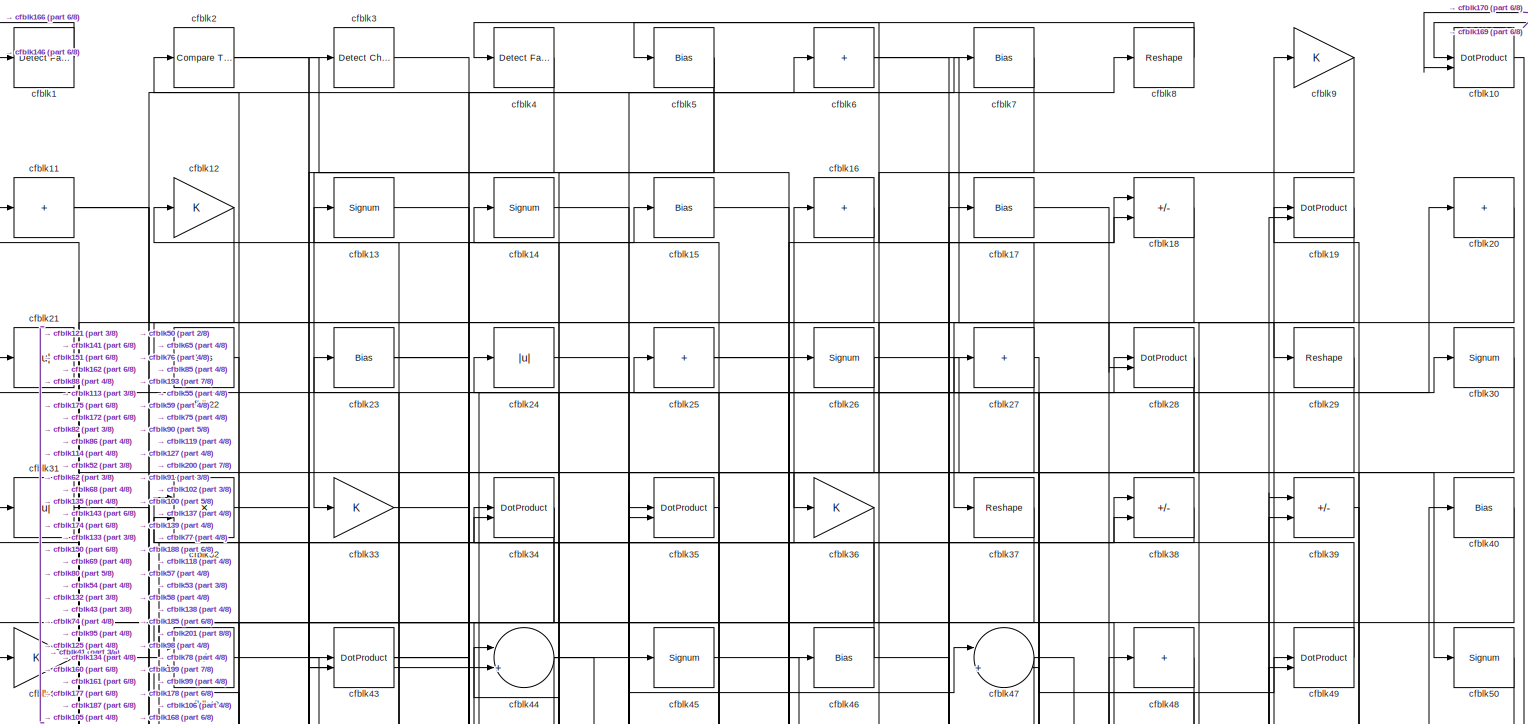
[diagram: root canvas - part 1/8, full width, top band]
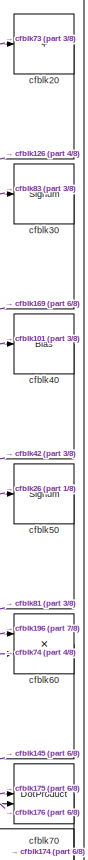
[diagram: root canvas - part 2/8, top right region]
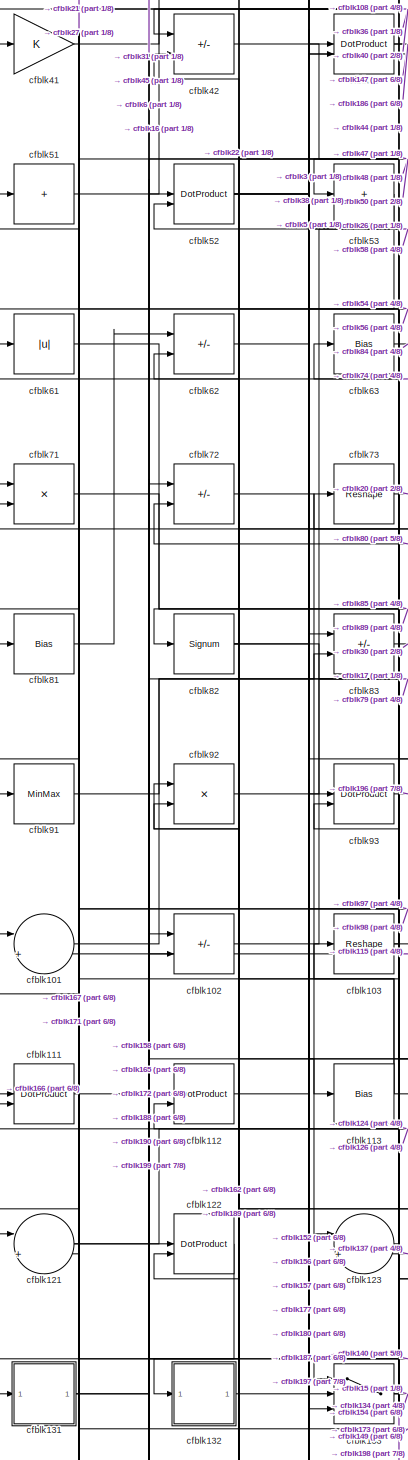
[diagram: root canvas - part 3/8, middle left region]
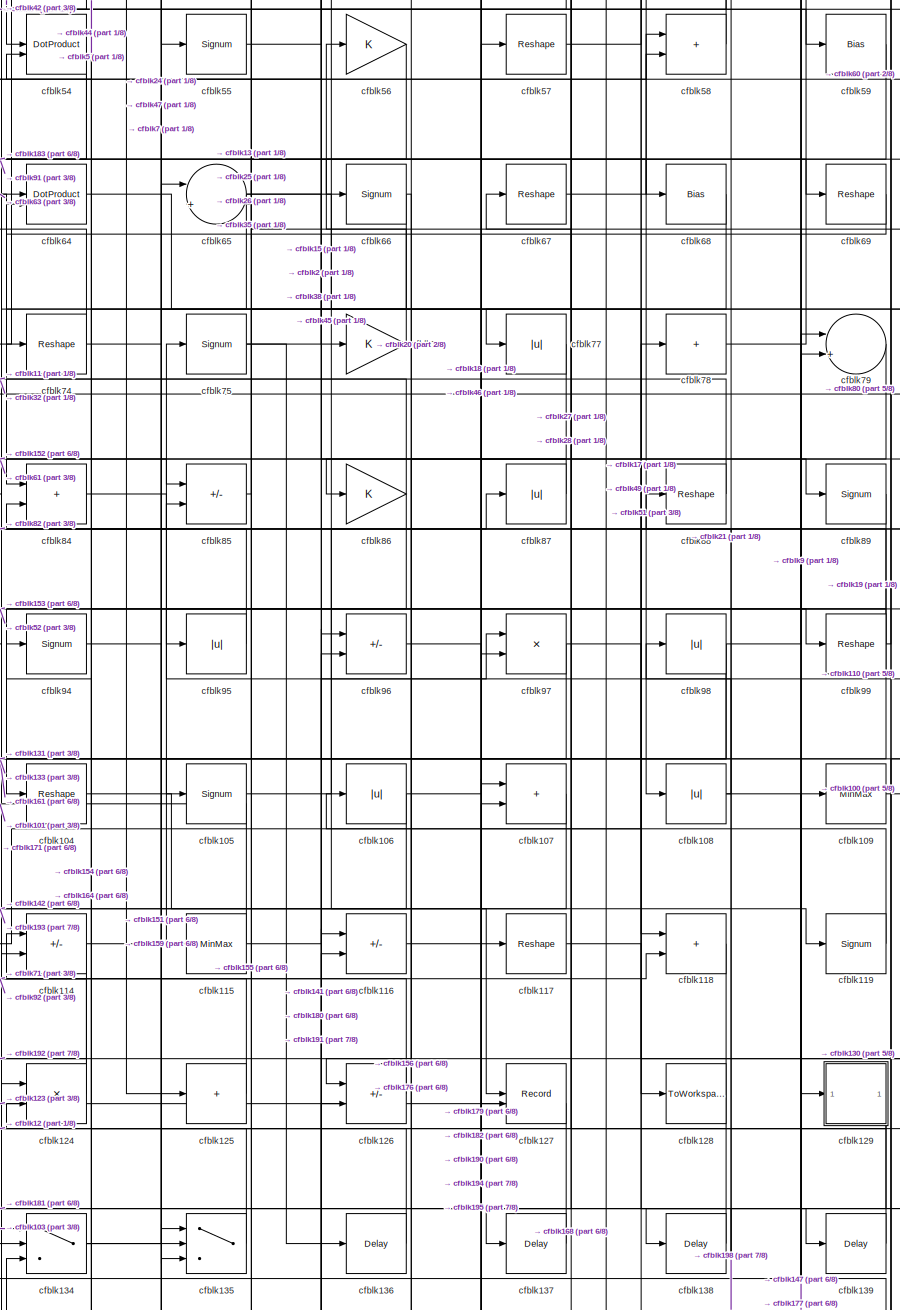
[diagram: root canvas - part 4/8, central region]
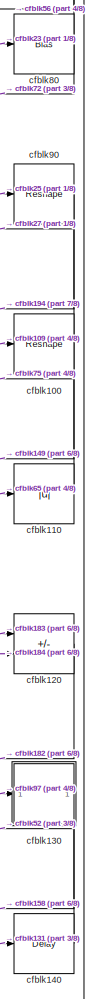
[diagram: root canvas - part 5/8, middle right region]
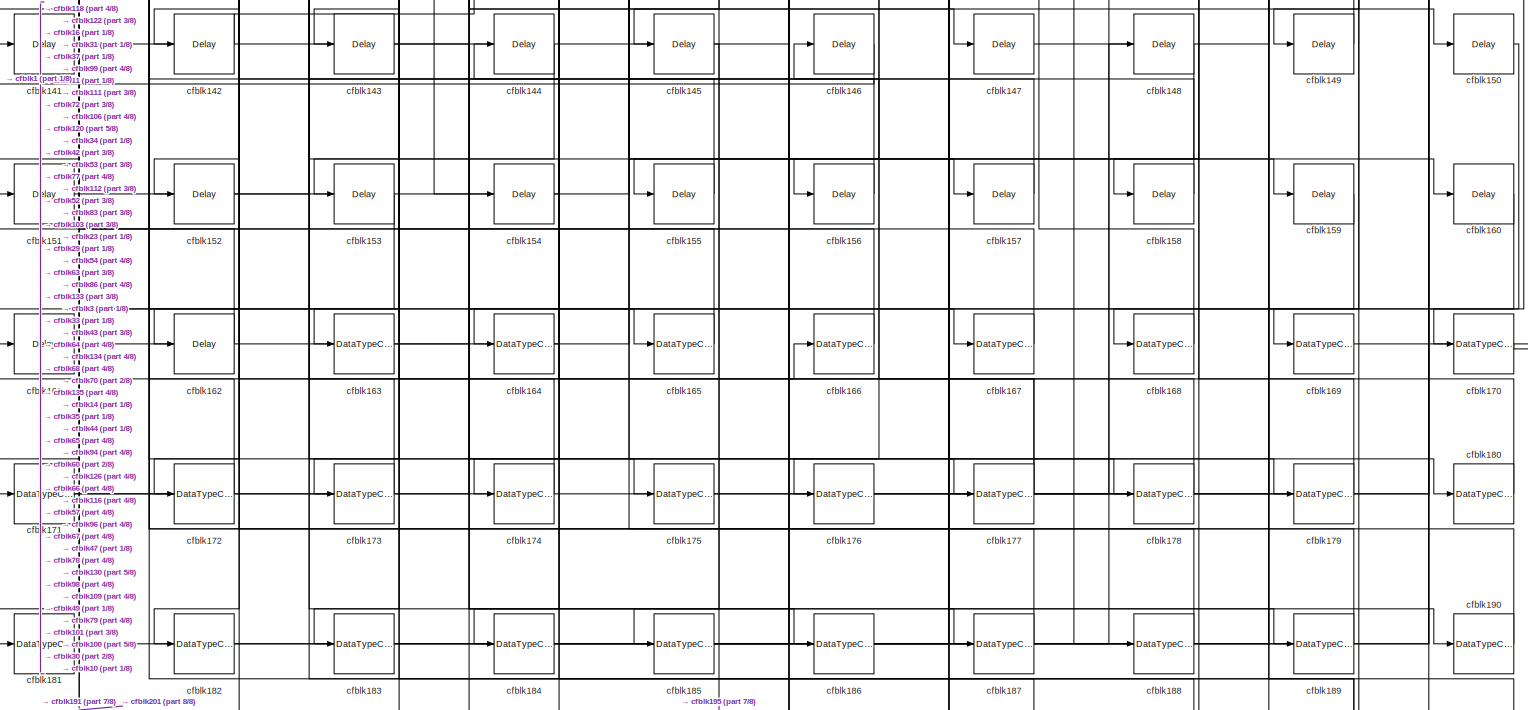
[diagram: root canvas - part 6/8, full width, bottom band]
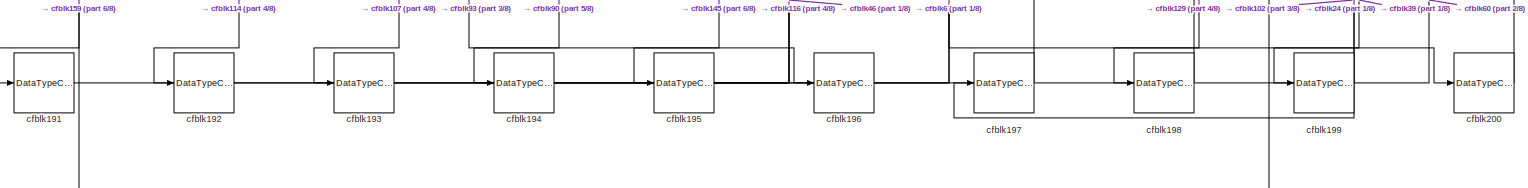
[diagram: root canvas - part 7/8, full width, bottom band]
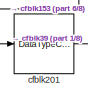
[diagram: root canvas - part 8/8, bottom left region]
MODEL slx_036431345b5e
KIND model
CONFIG AbsTol = auto
CONFIG EnableMultiTasking = off
CONFIG FixedStep = auto
CONFIG MaxStep = auto
CONFIG MinStep = auto
CONFIG RelTol = 1e-3
CONFIG SampleTimeConstraint = Unconstrained
CONFIG SolverName = VariableStepAuto
CONFIG StartTime = 0.0
CONFIG StopTime = 10.0
BLOCK [Reference] cfblk1  REF=hdlsllib/Logic and Bit
Operations/Detect Fall
Nonpositive
  SourceBlock = hdlsllib/Logic and Bit\nOperations/Detect Fall\nNonpositive
  SourceType = Detect Fall Nonpositive
BLOCK [DotProduct] cfblk10
  OutDataTypeStr = Inherit: Inherit via internal rule
BLOCK [Reshape] cfblk100
BLOCK [Sum] cfblk101
  Inputs = |++
BLOCK [Sum] cfblk102
  IconShape = rectangular
  Inputs = +-
BLOCK [Reshape] cfblk103
BLOCK [Reshape] cfblk104
BLOCK [Signum] cfblk105
BLOCK [Abs] cfblk106
  SaturateOnIntegerOverflow = off
BLOCK [Sum] cfblk107
  IconShape = rectangular
BLOCK [Abs] cfblk108
  SaturateOnIntegerOverflow = off
BLOCK [MinMax] cfblk109
BLOCK [Sum] cfblk11
  IconShape = rectangular
  Inputs = +
BLOCK [Abs] cfblk110
  SaturateOnIntegerOverflow = off
BLOCK [DotProduct] cfblk111
  OutDataTypeStr = Inherit: Inherit via internal rule
BLOCK [DotProduct] cfblk112
  OutDataTypeStr = Inherit: Inherit via internal rule
BLOCK [Bias] cfblk113
  Bias = 0.0
  SaturateOnIntegerOverflow = off
BLOCK [Sum] cfblk114
  IconShape = rectangular
  Inputs = +-
BLOCK [MinMax] cfblk115
BLOCK [Sum] cfblk116
  IconShape = rectangular
  Inputs = +-
BLOCK [Reshape] cfblk117
BLOCK [Sum] cfblk118
  IconShape = rectangular
BLOCK [Signum] cfblk119
BLOCK [Gain] cfblk12
BLOCK [Sum] cfblk120
  IconShape = rectangular
  Inputs = +-
BLOCK [Sum] cfblk121
  Inputs = |++
BLOCK [DotProduct] cfblk122
  OutDataTypeStr = Inherit: Inherit via internal rule
BLOCK [Sum] cfblk123
  Inputs = |++
BLOCK [Product] cfblk124
  Inputs = */
  RndMeth = Zero
  SaturateOnIntegerOverflow = on
BLOCK [Sum] cfblk125
  IconShape = rectangular
  Inputs = +
BLOCK [Sum] cfblk126
  IconShape = rectangular
  Inputs = +-
BLOCK [Record] cfblk127
  CompatibilityTag = XY
  FileSettingsInternal = {"entries":[{"content":{"excelSettings":{"content":{},"type":"Streamout.ExcelSettings"}},"type":"Streamout.FileSettingStorage","uuid":""}],"packageUris":["http:\/\/schema.mathworks.com\/mf0\/streamout_blocks\/R2020a"],"version":"1.0"}
  Layout = [1 1]
  SignalsInternal = {"entries":[{"content":{"signals":[{"content":{"blockPath":[],"dimensions":[1],"domain":"","lineColor":"#a2142f","plots":[1],"port":1,"sid":[""],"signalID":804,"signalName":"cfblk104"},"type":"RecordBlkView.Signal","uuid":""},{"content":{"blockPath":[],"dimensions":[1],"domain":"","lineColor":"#139fff","plots":[1],"port":2,"sid":[""],"signalID":810,"signalName":"cfblk9"},"type":"RecordBlkView.Sign...<+160ch>
  VisualizationBindings = {"xyplotplugin":{"info":[{"series":[{"bindingParametersList":[{"parameter":"X-Axis","signalID":804,"signalName":"cfblk104"},{"parameter":"Y-Axis","signalID":810,"signalName":"cfblk9"}],"seriesID":53597}],"subplotID":1}]}}
  st = -1
BLOCK [ToWorkspace] cfblk128
  MaxDataPoints = inf
  SampleTime = -1
  SaveFormat = Timeseries
  VariableName = simout
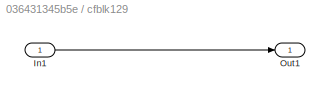
BLOCK [SubSystem] cfblk129
  LibrarySourceBlock = hdlsllib/Ports &\nSubsystems/Subsystem
BLOCK [Inport] cfblk129/In1
BLOCK [Outport] cfblk129/Out1
BLOCK [Signum] cfblk13
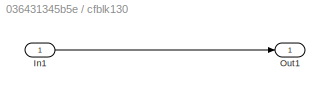
BLOCK [SubSystem] cfblk130
  LibrarySourceBlock = hdlsllib/Ports &\nSubsystems/Subsystem
BLOCK [Inport] cfblk130/In1
BLOCK [Outport] cfblk130/Out1
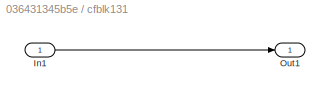
BLOCK [SubSystem] cfblk131
  LibrarySourceBlock = hdlsllib/Ports &\nSubsystems/Subsystem
BLOCK [Inport] cfblk131/In1
BLOCK [Outport] cfblk131/Out1
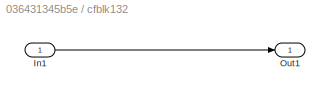
BLOCK [SubSystem] cfblk132
  LibrarySourceBlock = hdlsllib/Ports &\nSubsystems/Subsystem
BLOCK [Inport] cfblk132/In1
BLOCK [Outport] cfblk132/Out1
BLOCK [Switch] cfblk133
  InputSameDT = off
  SaturateOnIntegerOverflow = off
BLOCK [Switch] cfblk134
  InputSameDT = off
  SaturateOnIntegerOverflow = off
BLOCK [Switch] cfblk135
  InputSameDT = off
  SaturateOnIntegerOverflow = off
BLOCK [Delay] cfblk136
  InputPortMap = u0
  SampleTime = 1
BLOCK [Delay] cfblk137
  InputPortMap = u0
  SampleTime = 1
BLOCK [Delay] cfblk138
  InputPortMap = u0
  SampleTime = 1
BLOCK [Delay] cfblk139
  InputPortMap = u0
  SampleTime = 1
BLOCK [Signum] cfblk14
BLOCK [Delay] cfblk140
  InputPortMap = u0
  SampleTime = 1
BLOCK [Delay] cfblk141
  InputPortMap = u0
  SampleTime = 1
BLOCK [Delay] cfblk142
  InputPortMap = u0
  SampleTime = 1
BLOCK [Delay] cfblk143
  InputPortMap = u0
  SampleTime = 1
BLOCK [Delay] cfblk144
  InputPortMap = u0
  SampleTime = 1
BLOCK [Delay] cfblk145
  InputPortMap = u0
  SampleTime = 1
BLOCK [Delay] cfblk146
  InputPortMap = u0
  SampleTime = 1
BLOCK [Delay] cfblk147
  InputPortMap = u0
  SampleTime = 1
BLOCK [Delay] cfblk148
  InputPortMap = u0
  SampleTime = 1
BLOCK [Delay] cfblk149
  InputPortMap = u0
  SampleTime = 1
BLOCK [Bias] cfblk15
  Bias = 0.0
  SaturateOnIntegerOverflow = off
BLOCK [Delay] cfblk150
  InputPortMap = u0
  SampleTime = 1
BLOCK [Delay] cfblk151
  InputPortMap = u0
  SampleTime = 1
BLOCK [Delay] cfblk152
  InputPortMap = u0
  SampleTime = 1
BLOCK [Delay] cfblk153
  InputPortMap = u0
  SampleTime = 1
BLOCK [Delay] cfblk154
  InputPortMap = u0
  SampleTime = 1
BLOCK [Delay] cfblk155
  InputPortMap = u0
  SampleTime = 1
BLOCK [Delay] cfblk156
  InputPortMap = u0
  SampleTime = 1
BLOCK [Delay] cfblk157
  InputPortMap = u0
  SampleTime = 1
BLOCK [Delay] cfblk158
  InputPortMap = u0
  SampleTime = 1
BLOCK [Delay] cfblk159
  InputPortMap = u0
  SampleTime = 1
BLOCK [Sum] cfblk16
  IconShape = rectangular
  Inputs = +
BLOCK [Delay] cfblk160
  InputPortMap = u0
  SampleTime = 1
BLOCK [Delay] cfblk161
  InputPortMap = u0
  SampleTime = 1
BLOCK [Delay] cfblk162
  InputPortMap = u0
  SampleTime = 1
BLOCK [DataTypeConversion] cfblk163
  OutDataTypeStr = uint8
  RndMeth = Floor
  SaturateOnIntegerOverflow = off
BLOCK [DataTypeConversion] cfblk164
  OutDataTypeStr = uint8
  RndMeth = Floor
  SaturateOnIntegerOverflow = off
BLOCK [DataTypeConversion] cfblk165
  OutDataTypeStr = uint8
  RndMeth = Floor
  SaturateOnIntegerOverflow = off
BLOCK [DataTypeConversion] cfblk166
  OutDataTypeStr = uint8
  RndMeth = Floor
  SaturateOnIntegerOverflow = off
BLOCK [DataTypeConversion] cfblk167
  OutDataTypeStr = uint8
  RndMeth = Floor
  SaturateOnIntegerOverflow = off
BLOCK [DataTypeConversion] cfblk168
  OutDataTypeStr = uint8
  RndMeth = Floor
  SaturateOnIntegerOverflow = off
BLOCK [DataTypeConversion] cfblk169
  OutDataTypeStr = uint8
  RndMeth = Floor
  SaturateOnIntegerOverflow = off
BLOCK [Bias] cfblk17
  Bias = 0.0
  SaturateOnIntegerOverflow = off
BLOCK [DataTypeConversion] cfblk170
  OutDataTypeStr = uint8
  RndMeth = Floor
  SaturateOnIntegerOverflow = off
BLOCK [DataTypeConversion] cfblk171
  RndMeth = Floor
  SaturateOnIntegerOverflow = off
BLOCK [DataTypeConversion] cfblk172
  OutDataTypeStr = uint8
  RndMeth = Floor
  SaturateOnIntegerOverflow = off
BLOCK [DataTypeConversion] cfblk173
  OutDataTypeStr = uint8
  RndMeth = Floor
  SaturateOnIntegerOverflow = off
BLOCK [DataTypeConversion] cfblk174
  OutDataTypeStr = uint8
  RndMeth = Floor
  SaturateOnIntegerOverflow = off
BLOCK [DataTypeConversion] cfblk175
  OutDataTypeStr = uint8
  RndMeth = Floor
  SaturateOnIntegerOverflow = off
BLOCK [DataTypeConversion] cfblk176
  OutDataTypeStr = uint8
  RndMeth = Floor
  SaturateOnIntegerOverflow = off
BLOCK [DataTypeConversion] cfblk177
  RndMeth = Floor
  SaturateOnIntegerOverflow = off
BLOCK [DataTypeConversion] cfblk178
  OutDataTypeStr = uint8
  RndMeth = Floor
  SaturateOnIntegerOverflow = off
BLOCK [DataTypeConversion] cfblk179
  OutDataTypeStr = uint8
  RndMeth = Floor
  SaturateOnIntegerOverflow = off
BLOCK [Sum] cfblk18
  IconShape = rectangular
  Inputs = +-
BLOCK [DataTypeConversion] cfblk180
  OutDataTypeStr = uint8
  RndMeth = Floor
  SaturateOnIntegerOverflow = off
BLOCK [DataTypeConversion] cfblk181
  OutDataTypeStr = uint8
  RndMeth = Floor
  SaturateOnIntegerOverflow = off
BLOCK [DataTypeConversion] cfblk182
  OutDataTypeStr = uint8
  RndMeth = Floor
  SaturateOnIntegerOverflow = off
BLOCK [DataTypeConversion] cfblk183
  OutDataTypeStr = uint8
  RndMeth = Floor
  SaturateOnIntegerOverflow = off
BLOCK [DataTypeConversion] cfblk184
  OutDataTypeStr = uint8
  RndMeth = Floor
  SaturateOnIntegerOverflow = off
BLOCK [DataTypeConversion] cfblk185
  OutDataTypeStr = uint8
  RndMeth = Floor
  SaturateOnIntegerOverflow = off
BLOCK [DataTypeConversion] cfblk186
  OutDataTypeStr = uint8
  RndMeth = Floor
  SaturateOnIntegerOverflow = off
BLOCK [DataTypeConversion] cfblk187
  OutDataTypeStr = uint8
  RndMeth = Floor
  SaturateOnIntegerOverflow = off
BLOCK [DataTypeConversion] cfblk188
  OutDataTypeStr = uint8
  RndMeth = Floor
  SaturateOnIntegerOverflow = off
BLOCK [DataTypeConversion] cfblk189
  OutDataTypeStr = uint8
  RndMeth = Floor
  SaturateOnIntegerOverflow = off
BLOCK [DotProduct] cfblk19
  OutDataTypeStr = Inherit: Inherit via internal rule
BLOCK [DataTypeConversion] cfblk190
  OutDataTypeStr = uint8
  RndMeth = Floor
  SaturateOnIntegerOverflow = off
BLOCK [DataTypeConversion] cfblk191
  OutDataTypeStr = uint8
  RndMeth = Floor
  SaturateOnIntegerOverflow = off
BLOCK [DataTypeConversion] cfblk192
  OutDataTypeStr = uint8
  RndMeth = Floor
  SaturateOnIntegerOverflow = off
BLOCK [DataTypeConversion] cfblk193
  OutDataTypeStr = uint8
  RndMeth = Floor
  SaturateOnIntegerOverflow = off
BLOCK [DataTypeConversion] cfblk194
  OutDataTypeStr = uint8
  RndMeth = Floor
  SaturateOnIntegerOverflow = off
BLOCK [DataTypeConversion] cfblk195
  OutDataTypeStr = uint8
  RndMeth = Floor
  SaturateOnIntegerOverflow = off
BLOCK [DataTypeConversion] cfblk196
  OutDataTypeStr = uint8
  RndMeth = Floor
  SaturateOnIntegerOverflow = off
BLOCK [DataTypeConversion] cfblk197
  OutDataTypeStr = uint8
  RndMeth = Floor
  SaturateOnIntegerOverflow = off
BLOCK [DataTypeConversion] cfblk198
  OutDataTypeStr = uint8
  RndMeth = Floor
  SaturateOnIntegerOverflow = off
BLOCK [DataTypeConversion] cfblk199
  RndMeth = Floor
  SaturateOnIntegerOverflow = off
BLOCK [Reference] cfblk2  REF=hdlsllib/Logic and Bit
Operations/Compare
To Constant
  SourceBlock = hdlsllib/Logic and Bit\nOperations/Compare\nTo Constant
  SourceType = Compare To Constant
BLOCK [Sum] cfblk20
  IconShape = rectangular
  Inputs = +
BLOCK [DataTypeConversion] cfblk200
  OutDataTypeStr = uint8
  RndMeth = Floor
  SaturateOnIntegerOverflow = off
BLOCK [DataTypeConversion] cfblk201
  OutDataTypeStr = uint8
  RndMeth = Floor
  SaturateOnIntegerOverflow = off
BLOCK [Abs] cfblk21
  SaturateOnIntegerOverflow = off
BLOCK [Bias] cfblk22
  Bias = 0.0
  SaturateOnIntegerOverflow = off
BLOCK [Bias] cfblk23
  Bias = 0.0
  SaturateOnIntegerOverflow = off
BLOCK [Abs] cfblk24
  SaturateOnIntegerOverflow = off
BLOCK [Sum] cfblk25
  IconShape = rectangular
  Inputs = +
BLOCK [Signum] cfblk26
BLOCK [Sum] cfblk27
  IconShape = rectangular
  Inputs = +
BLOCK [DotProduct] cfblk28
  OutDataTypeStr = Inherit: Inherit via internal rule
BLOCK [Reshape] cfblk29
BLOCK [Reference] cfblk3  REF=simulink/Logic and Bit
Operations/Detect
Change
  LibrarySourceBlock = hdlsllib/Logic and Bit\nOperations/Detect\nChange
  SourceBlock = simulink/Logic and Bit\nOperations/Detect\nChange
  SourceType = Detect Change
BLOCK [Signum] cfblk30
BLOCK [Abs] cfblk31
  SaturateOnIntegerOverflow = off
BLOCK [Product] cfblk32
  Inputs = */
  RndMeth = Zero
  SaturateOnIntegerOverflow = on
BLOCK [Gain] cfblk33
BLOCK [DotProduct] cfblk34
  OutDataTypeStr = Inherit: Inherit via internal rule
BLOCK [DotProduct] cfblk35
  OutDataTypeStr = Inherit: Inherit via internal rule
BLOCK [Gain] cfblk36
BLOCK [Reshape] cfblk37
BLOCK [Sum] cfblk38
  IconShape = rectangular
  Inputs = +-
BLOCK [Sum] cfblk39
  IconShape = rectangular
  Inputs = +-
BLOCK [Reference] cfblk4  REF=hdlsllib/Logic and Bit
Operations/Detect Fall
Negative
  SourceBlock = hdlsllib/Logic and Bit\nOperations/Detect Fall\nNegative
  SourceType = Detect Fall Negative
BLOCK [Bias] cfblk40
  Bias = 0.0
  SaturateOnIntegerOverflow = off
BLOCK [Gain] cfblk41
BLOCK [Sum] cfblk42
  IconShape = rectangular
  Inputs = +-
BLOCK [DotProduct] cfblk43
  OutDataTypeStr = Inherit: Inherit via internal rule
BLOCK [Sum] cfblk44
  Inputs = |++
BLOCK [Signum] cfblk45
BLOCK [Bias] cfblk46
  Bias = 0.0
  SaturateOnIntegerOverflow = off
BLOCK [Sum] cfblk47
  Inputs = |++
BLOCK [Sum] cfblk48
  IconShape = rectangular
  Inputs = +
BLOCK [DotProduct] cfblk49
  OutDataTypeStr = Inherit: Inherit via internal rule
BLOCK [Bias] cfblk5
  Bias = 0.0
  SaturateOnIntegerOverflow = off
BLOCK [Signum] cfblk50
BLOCK [Sum] cfblk51
  IconShape = rectangular
  Inputs = +
BLOCK [DotProduct] cfblk52
  OutDataTypeStr = Inherit: Inherit via internal rule
BLOCK [Sum] cfblk53
  IconShape = rectangular
  Inputs = +
BLOCK [DotProduct] cfblk54
  OutDataTypeStr = Inherit: Inherit via internal rule
BLOCK [Signum] cfblk55
BLOCK [Gain] cfblk56
BLOCK [Reshape] cfblk57
BLOCK [Sum] cfblk58
  IconShape = rectangular
BLOCK [Bias] cfblk59
  Bias = 0.0
  SaturateOnIntegerOverflow = off
BLOCK [Sum] cfblk6
  IconShape = rectangular
  Inputs = +
BLOCK [Product] cfblk60
  Inputs = */
  RndMeth = Zero
  SaturateOnIntegerOverflow = on
BLOCK [Abs] cfblk61
  SaturateOnIntegerOverflow = off
BLOCK [Sum] cfblk62
  IconShape = rectangular
  Inputs = +-
BLOCK [Bias] cfblk63
  Bias = 0.0
  SaturateOnIntegerOverflow = off
BLOCK [DotProduct] cfblk64
  OutDataTypeStr = Inherit: Inherit via internal rule
BLOCK [Sum] cfblk65
  Inputs = |++
BLOCK [Signum] cfblk66
BLOCK [Reshape] cfblk67
BLOCK [Bias] cfblk68
  Bias = 0.0
  SaturateOnIntegerOverflow = off
BLOCK [Reshape] cfblk69
BLOCK [Bias] cfblk7
  Bias = 0.0
  SaturateOnIntegerOverflow = off
BLOCK [DotProduct] cfblk70
  OutDataTypeStr = Inherit: Inherit via internal rule
BLOCK [Product] cfblk71
  Inputs = */
  RndMeth = Zero
  SaturateOnIntegerOverflow = on
BLOCK [Sum] cfblk72
  IconShape = rectangular
  Inputs = +-
BLOCK [Reshape] cfblk73
BLOCK [Reshape] cfblk74
BLOCK [Signum] cfblk75
BLOCK [Gain] cfblk76
BLOCK [Abs] cfblk77
  SaturateOnIntegerOverflow = off
BLOCK [Sum] cfblk78
  IconShape = rectangular
  Inputs = +
BLOCK [Sum] cfblk79
  Inputs = |++
BLOCK [Reshape] cfblk8
BLOCK [Bias] cfblk80
  Bias = 0.0
  SaturateOnIntegerOverflow = off
BLOCK [Bias] cfblk81
  Bias = 0.0
  SaturateOnIntegerOverflow = off
BLOCK [Signum] cfblk82
BLOCK [Sum] cfblk83
  IconShape = rectangular
  Inputs = +-
BLOCK [Sum] cfblk84
  IconShape = rectangular
BLOCK [Sum] cfblk85
  IconShape = rectangular
  Inputs = +-
BLOCK [Gain] cfblk86
BLOCK [Abs] cfblk87
  SaturateOnIntegerOverflow = off
BLOCK [Reshape] cfblk88
BLOCK [Signum] cfblk89
BLOCK [Gain] cfblk9
BLOCK [Reshape] cfblk90
BLOCK [MinMax] cfblk91
BLOCK [Product] cfblk92
  Inputs = */
  RndMeth = Zero
  SaturateOnIntegerOverflow = on
BLOCK [DotProduct] cfblk93
  OutDataTypeStr = Inherit: Inherit via internal rule
BLOCK [Signum] cfblk94
BLOCK [Abs] cfblk95
  SaturateOnIntegerOverflow = off
BLOCK [Sum] cfblk96
  IconShape = rectangular
  Inputs = +-
BLOCK [Product] cfblk97
  Inputs = */
  RndMeth = Zero
  SaturateOnIntegerOverflow = on
BLOCK [Abs] cfblk98
  SaturateOnIntegerOverflow = off
BLOCK [Reshape] cfblk99
NET cfblk100:1 -> cfblk149:1, cfblk27:1
LINE cfblk101:1 -> cfblk40:1
LINE cfblk102:1 -> cfblk26:1
NET cfblk103:1 -> cfblk134:1, cfblk173:1
LINE cfblk104:1 -> cfblk127:1
LINE cfblk105:1 -> cfblk87:1
NET cfblk106:1 -> cfblk142:1, cfblk18:1
LINE cfblk107:1 -> cfblk193:1
NET cfblk108:1 -> cfblk129:1, cfblk88:1
LINE cfblk109:1 -> cfblk100:1
LINE cfblk10:1 -> cfblk168:1
LINE cfblk110:1 -> cfblk75:1
LINE cfblk111:1 -> cfblk165:1
LINE cfblk112:1 -> cfblk187:1
NET cfblk113:1 -> cfblk48:1, cfblk51:1, cfblk92:1
NET cfblk114:1 -> cfblk192:1, cfblk7:1
NET cfblk115:1 -> cfblk101:2, cfblk97:1
LINE cfblk116:1 -> cfblk190:1
LINE cfblk117:1 -> cfblk139:1
LINE cfblk118:1 -> cfblk181:1
LINE cfblk119:1 -> cfblk106:1
NET cfblk11:1 -> cfblk175:1, cfblk28:2
LINE cfblk120:1 -> cfblk182:1
NET cfblk121:1 -> cfblk45:1, cfblk6:1
LINE cfblk122:1 -> cfblk171:1
LINE cfblk123:1 -> cfblk73:1
NET cfblk124:1 -> cfblk71:1, cfblk92:2
LINE cfblk125:1 -> cfblk94:1
LINE cfblk126:1 -> cfblk103:1
LINE cfblk129/In1:1 -> cfblk129/Out1:1
NET cfblk129:1 -> cfblk124:2, cfblk198:1
LINE cfblk12:1 -> cfblk22:1
LINE cfblk130/In1:1 -> cfblk130/Out1:1
LINE cfblk130:1 -> cfblk158:1
LINE cfblk131/In1:1 -> cfblk131/Out1:1
NET cfblk131:1 -> cfblk140:1, cfblk83:2
LINE cfblk132/In1:1 -> cfblk132/Out1:1
LINE cfblk132:1 -> cfblk38:2
NET cfblk133:1 -> cfblk154:1, cfblk15:1
NET cfblk134:1 -> cfblk114:1, cfblk118:2, cfblk47:1
LINE cfblk135:1 -> cfblk12:1
LINE cfblk136:1 -> cfblk84:2
LINE cfblk137:1 -> cfblk123:2
LINE cfblk138:1 -> cfblk134:2
LINE cfblk139:1 -> cfblk47:2
LINE cfblk13:1 -> cfblk69:1
LINE cfblk140:1 -> cfblk52:2
LINE cfblk141:1 -> cfblk126:2
LINE cfblk142:1 -> cfblk134:3
LINE cfblk143:1 -> cfblk189:1
LINE cfblk144:1 -> cfblk163:1
LINE cfblk145:1 -> cfblk195:1
LINE cfblk146:1 -> cfblk1:1
LINE cfblk147:1 -> cfblk79:1
LINE cfblk148:1 -> cfblk185:1
LINE cfblk149:1 -> cfblk101:1
LINE cfblk14:1 -> cfblk177:1
LINE cfblk150:1 -> cfblk170:1
LINE cfblk151:1 -> cfblk65:1
LINE cfblk152:1 -> cfblk83:1
LINE cfblk153:1 -> cfblk201:1
LINE cfblk154:1 -> cfblk54:2
LINE cfblk155:1 -> cfblk135:1
LINE cfblk156:1 -> cfblk133:2
LINE cfblk157:1 -> cfblk42:2
LINE cfblk158:1 -> cfblk72:1
LINE cfblk159:1 -> cfblk191:1
LINE cfblk15:1 -> cfblk59:1
LINE cfblk160:1 -> cfblk184:1
LINE cfblk161:1 -> cfblk35:2
LINE cfblk162:1 -> cfblk31:1
LINE cfblk163:1 -> cfblk167:1
LINE cfblk164:1 -> cfblk144:1
LINE cfblk165:1 -> cfblk63:1
LINE cfblk166:1 -> cfblk111:1
LINE cfblk167:1 -> cfblk111:2
LINE cfblk168:1 -> cfblk67:1
LINE cfblk169:1 -> cfblk10:1
LINE cfblk16:1 -> cfblk151:1
LINE cfblk170:1 -> cfblk10:2
NET cfblk171:1 -> cfblk64:1, cfblk78:1
LINE cfblk172:1 -> cfblk122:1
LINE cfblk173:1 -> cfblk122:2
LINE cfblk174:1 -> cfblk23:1
LINE cfblk175:1 -> cfblk70:1
LINE cfblk176:1 -> cfblk70:2
NET cfblk177:1 -> cfblk109:1, cfblk146:1, cfblk43:1
LINE cfblk178:1 -> cfblk14:1
LINE cfblk179:1 -> cfblk98:1
LINE cfblk17:1 -> cfblk118:1
LINE cfblk180:1 -> cfblk96:1
LINE cfblk181:1 -> cfblk96:2
LINE cfblk182:1 -> cfblk57:1
LINE cfblk183:1 -> cfblk120:1
LINE cfblk184:1 -> cfblk120:2
LINE cfblk185:1 -> cfblk49:2
LINE cfblk186:1 -> cfblk148:1
LINE cfblk187:1 -> cfblk35:1
LINE cfblk188:1 -> cfblk112:1
LINE cfblk189:1 -> cfblk112:2
LINE cfblk18:1 -> cfblk37:1
LINE cfblk190:1 -> cfblk52:1
LINE cfblk191:1 -> cfblk116:1
LINE cfblk192:1 -> cfblk116:2
LINE cfblk193:1 -> cfblk46:1
LINE cfblk194:1 -> cfblk107:1
LINE cfblk195:1 -> cfblk107:2
LINE cfblk196:1 -> cfblk60:1
LINE cfblk197:1 -> cfblk93:1
LINE cfblk198:1 -> cfblk93:2
NET cfblk199:1 -> cfblk102:1, cfblk197:1, cfblk24:1
LINE cfblk19:1 -> cfblk138:1
LINE cfblk1:1 -> cfblk166:1
LINE cfblk200:1 -> cfblk39:1
LINE cfblk201:1 -> cfblk39:2
LINE cfblk20:1 -> cfblk126:1
LINE cfblk21:1 -> cfblk121:2
LINE cfblk22:1 -> cfblk82:1
NET cfblk23:1 -> cfblk80:1, cfblk8:1
LINE cfblk24:1 -> cfblk55:1
NET cfblk25:1 -> cfblk18:2, cfblk90:1
NET cfblk26:1 -> cfblk105:1, cfblk50:1
NET cfblk27:1 -> cfblk41:1, cfblk4:1, cfblk77:1
NET cfblk28:1 -> cfblk135:3, cfblk137:1
LINE cfblk29:1 -> cfblk143:1
NET cfblk2:1 -> cfblk114:2, cfblk76:1
LINE cfblk30:1 -> cfblk169:1
LINE cfblk31:1 -> cfblk113:1
LINE cfblk32:1 -> cfblk68:1
LINE cfblk33:1 -> cfblk150:1
NET cfblk34:1 -> cfblk172:1, cfblk54:1
LINE cfblk35:1 -> cfblk65:2
LINE cfblk36:1 -> cfblk121:1
LINE cfblk37:1 -> cfblk141:1
LINE cfblk38:1 -> cfblk32:2
LINE cfblk39:1 -> cfblk199:1
LINE cfblk3:1 -> cfblk178:1
LINE cfblk40:1 -> cfblk42:1
LINE cfblk41:1 -> cfblk16:1
LINE cfblk42:1 -> cfblk124:1
NET cfblk43:1 -> cfblk147:1, cfblk186:1
NET cfblk44:1 -> cfblk125:1, cfblk132:1, cfblk160:1
LINE cfblk45:1 -> cfblk119:1
NET cfblk46:1 -> cfblk34:2, cfblk99:1
NET cfblk47:1 -> cfblk102:2, cfblk188:1
LINE cfblk48:1 -> cfblk53:1
LINE cfblk49:1 -> cfblk2:1
LINE cfblk4:1 -> cfblk33:1
LINE cfblk50:1 -> cfblk81:1
LINE cfblk51:1 -> cfblk108:1
NET cfblk52:1 -> cfblk157:1, cfblk180:1, cfblk44:2, cfblk97:2
LINE cfblk53:1 -> cfblk162:1
NET cfblk54:1 -> cfblk183:1, cfblk91:1
LINE cfblk55:1 -> cfblk38:1
LINE cfblk56:1 -> cfblk71:2
LINE cfblk57:1 -> cfblk49:1
LINE cfblk58:1 -> cfblk21:1
LINE cfblk59:1 -> cfblk66:1
NET cfblk5:1 -> cfblk43:2, cfblk74:1
LINE cfblk60:1 -> cfblk145:1
LINE cfblk61:1 -> cfblk85:1
LINE cfblk62:1 -> cfblk3:1
LINE cfblk63:1 -> cfblk84:1
LINE cfblk64:1 -> cfblk117:1
NET cfblk65:1 -> cfblk110:1, cfblk128:1, cfblk135:2
NET cfblk66:1 -> cfblk155:1, cfblk156:1
LINE cfblk67:1 -> cfblk58:1
LINE cfblk68:1 -> cfblk164:1
LINE cfblk69:1 -> cfblk64:2
NET cfblk6:1 -> cfblk200:1, cfblk29:1
LINE cfblk70:1 -> cfblk174:1
LINE cfblk71:1 -> cfblk89:1
LINE cfblk72:1 -> cfblk123:1
LINE cfblk73:1 -> cfblk20:1
NET cfblk74:1 -> cfblk60:2, cfblk61:1
NET cfblk75:1 -> cfblk136:1, cfblk28:1
LINE cfblk76:1 -> cfblk13:1
LINE cfblk77:1 -> cfblk152:1
LINE cfblk78:1 -> cfblk9:1
LINE cfblk79:1 -> cfblk176:1
LINE cfblk7:1 -> cfblk36:1
NET cfblk80:1 -> cfblk56:1, cfblk72:2
LINE cfblk81:1 -> cfblk62:1
NET cfblk82:1 -> cfblk58:2, cfblk62:2, cfblk85:2
LINE cfblk83:1 -> cfblk30:1
LINE cfblk84:1 -> cfblk115:1
LINE cfblk85:1 -> cfblk25:1
NET cfblk86:1 -> cfblk153:1, cfblk32:1
LINE cfblk87:1 -> cfblk86:1
LINE cfblk88:1 -> cfblk11:1
LINE cfblk89:1 -> cfblk104:1
LINE cfblk8:1 -> cfblk5:1
LINE cfblk90:1 -> cfblk194:1
LINE cfblk91:1 -> cfblk17:1
LINE cfblk92:1 -> cfblk79:2
LINE cfblk93:1 -> cfblk196:1
LINE cfblk94:1 -> cfblk159:1
LINE cfblk95:1 -> cfblk34:1
LINE cfblk96:1 -> cfblk179:1
NET cfblk97:1 -> cfblk130:1, cfblk133:1
NET cfblk98:1 -> cfblk131:1, cfblk133:3, cfblk19:2
NET cfblk99:1 -> cfblk161:1, cfblk19:1, cfblk44:1, cfblk95:1
LINE cfblk9:1 -> cfblk127:2
note: NET lines group one-source signal fan-out (src -> all destinations, sorted); 1:1 wires keep LINE
